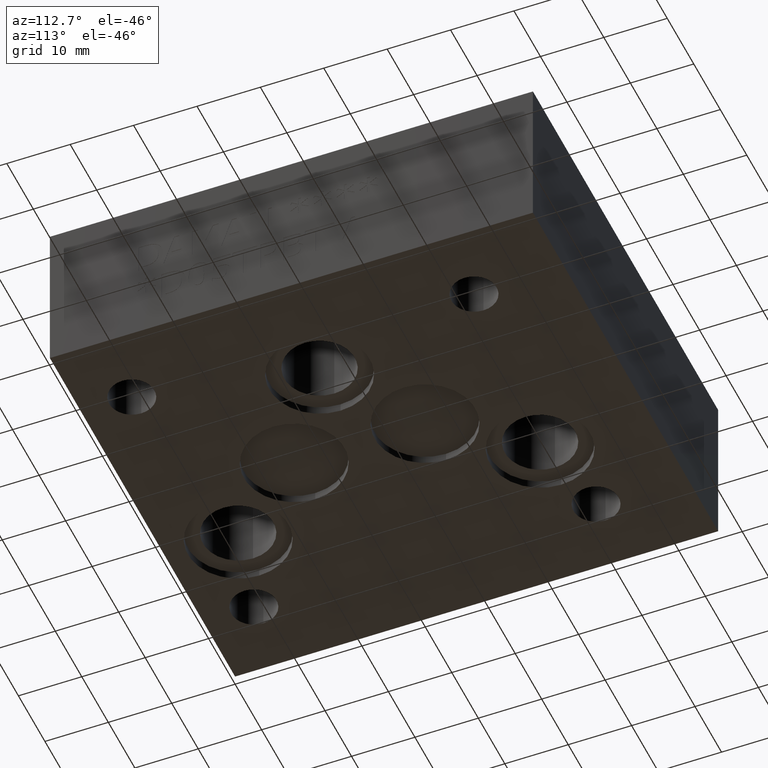
[diagram: clean part render]
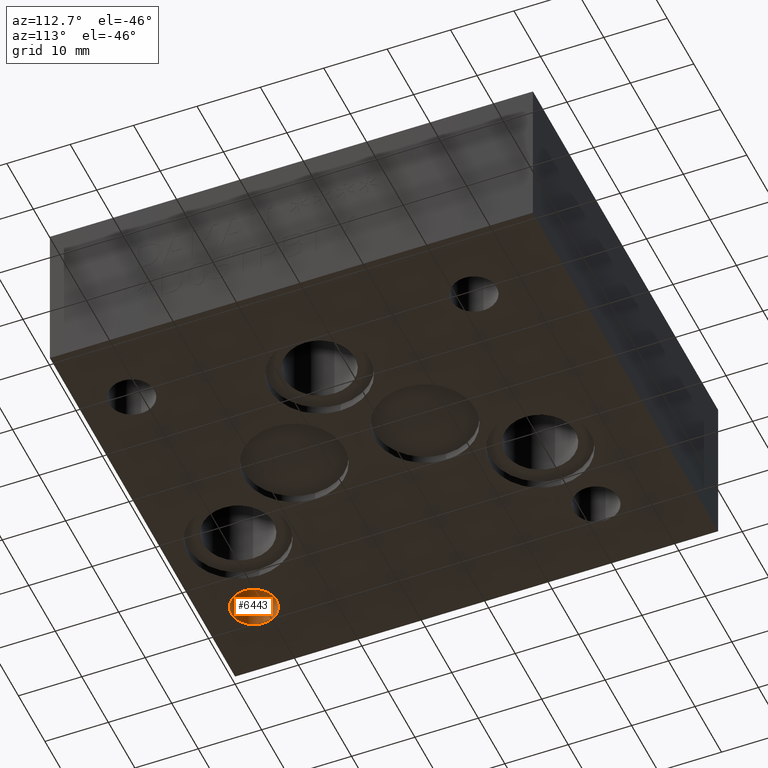
[diagram: same view with one face highlighted and labeled with its STEP entity id]
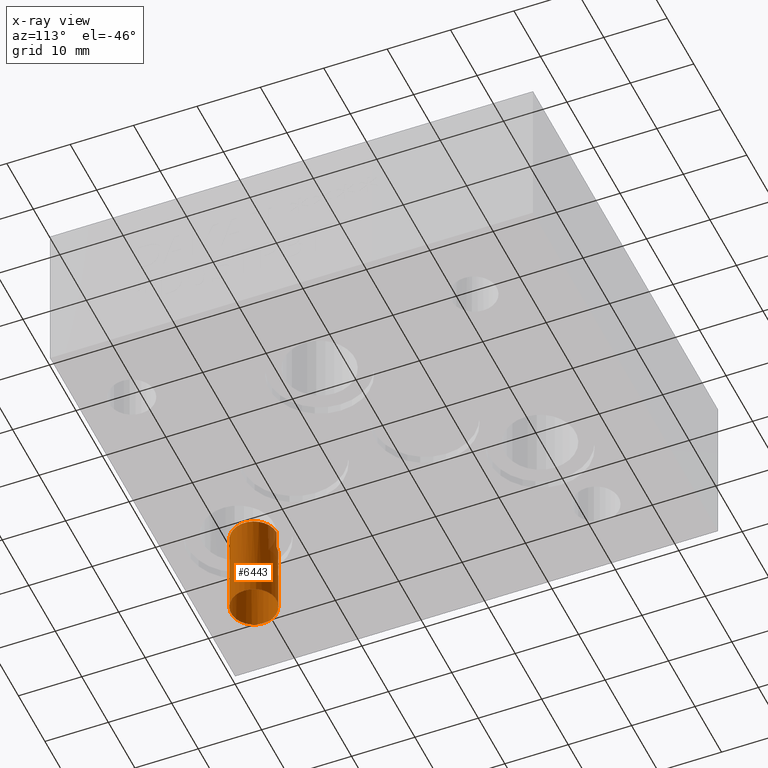
[diagram: x-ray of the same camera — body ghosted, the highlighted face saturated]
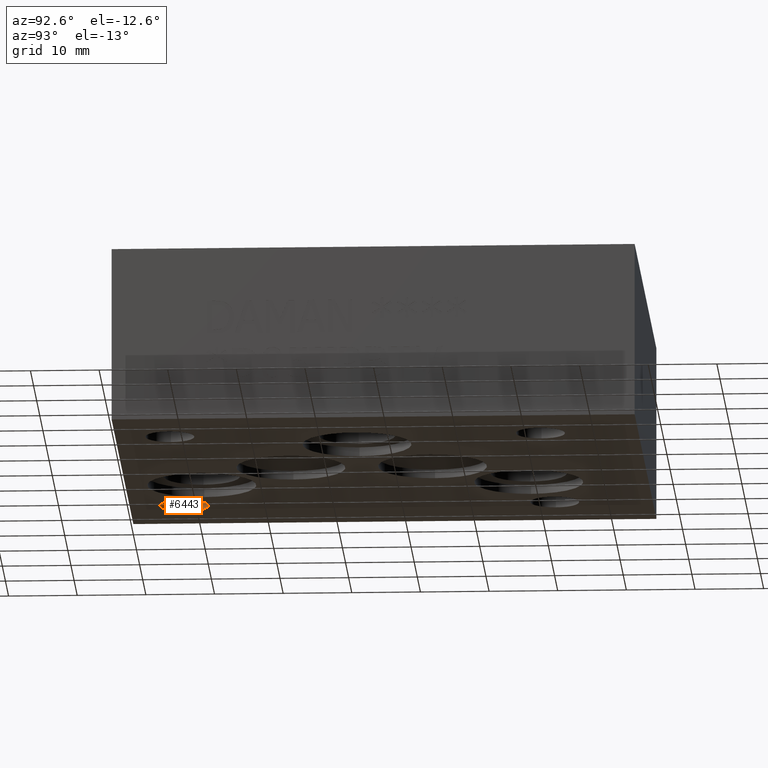
[diagram: same view with one face highlighted and labeled with its STEP entity id]
A machine part, auxiliary view. The second image highlights one B-rep face of the part: STEP entity #6443.
The next image is the same camera in x-ray: the body ghosted, the highlighted face saturated — about 6% of this face is hidden behind the body in this view.
A second angle (auxiliary view) of the same face is appended — the face is thin or edge-on in the first view.
In plain terms, the highlighted cylindrical surface (bore or boss wall) has radius 3.5687 mm, axis along (0, 0, -1).
Its self-contained STEP definition (entity closure, byte-faithful):
#59=CIRCLE('',#6749,3.5687);
#60=CIRCLE('',#6751,3.5687);
#61=CIRCLE('',#6752,3.5687);
#95=CYLINDRICAL_SURFACE('',#6750,3.5687);
#282=B_SPLINE_CURVE_WITH_KNOTS('',3,(#10788,#10789,#10790,#10791,#10792,
#10793,#10794,#10795,#10796,#10797),.UNSPECIFIED.,.F.,.F.,(4,2,2,2,4),(0.538348094949626,
0.672141773922201,0.806570255078943,0.940998422028697,1.07542658897845),
 .UNSPECIFIED.);
#283=B_SPLINE_CURVE_WITH_KNOTS('',3,(#10801,#10802,#10803,#10804,#10805,
#10806,#10807,#10808,#10809,#10810),.UNSPECIFIED.,.F.,.F.,(4,2,2,2,4),(1.07542658897845,
1.2098547559282,1.34428292287796,1.4787114040347,1.61250508300728),
 .UNSPECIFIED.);
#647=FACE_OUTER_BOUND('',#994,.T.);
#994=EDGE_LOOP('',(#5507,#5508,#5509,#5510,#5511,#5512,#5513,#5514,#5515));
#1694=LINE('',#10786,#2377);
#1695=LINE('',#10798,#2378);
#1696=LINE('',#10800,#2379);
#2377=VECTOR('',#8015,3.5687);
#2378=VECTOR('',#8016,10.);
#2379=VECTOR('',#8017,10.);
#2959=VERTEX_POINT('',#10754);
#2960=VERTEX_POINT('',#10755);
#2961=VERTEX_POINT('',#10781);
#2962=VERTEX_POINT('',#10782);
#2963=VERTEX_POINT('',#10785);
#2964=VERTEX_POINT('',#10787);
#2965=VERTEX_POINT('',#10799);
#3826=EDGE_CURVE('',#2959,#2960,#59,.T.);
#3827=EDGE_CURVE('',#2961,#2962,#60,.T.);
#3828=EDGE_CURVE('',#2962,#2961,#61,.T.);
#3829=EDGE_CURVE('',#2962,#2963,#1694,.T.);
#3830=EDGE_CURVE('',#2964,#2963,#282,.T.);
#3831=EDGE_CURVE('',#2960,#2964,#1695,.T.);
#3832=EDGE_CURVE('',#2965,#2959,#1696,.T.);
#3833=EDGE_CURVE('',#2963,#2965,#283,.T.);
#5507=ORIENTED_EDGE('',*,*,#3827,.F.);
#5508=ORIENTED_EDGE('',*,*,#3828,.F.);
#5509=ORIENTED_EDGE('',*,*,#3829,.T.);
#5510=ORIENTED_EDGE('',*,*,#3830,.F.);
#5511=ORIENTED_EDGE('',*,*,#3831,.F.);
#5512=ORIENTED_EDGE('',*,*,#3826,.F.);
#5513=ORIENTED_EDGE('',*,*,#3832,.F.);
#5514=ORIENTED_EDGE('',*,*,#3833,.F.);
#5515=ORIENTED_EDGE('',*,*,#3829,.F.);
#6443=ADVANCED_FACE('',(#647),#95,.F.);
#6749=AXIS2_PLACEMENT_3D('',#10779,#8007,#8008);
#6750=AXIS2_PLACEMENT_3D('',#10780,#8009,#8010);
#6751=AXIS2_PLACEMENT_3D('',#10783,#8011,#8012);
#6752=AXIS2_PLACEMENT_3D('',#10784,#8013,#8014);
#8007=DIRECTION('center_axis',(0.,0.,-1.));
#8008=DIRECTION('ref_axis',(1.,0.,0.));
#8009=DIRECTION('center_axis',(0.,0.,-1.));
#8010=DIRECTION('ref_axis',(1.,0.,0.));
#8011=DIRECTION('center_axis',(0.,0.,1.));
#8012=DIRECTION('ref_axis',(1.,0.,0.));
#8013=DIRECTION('center_axis',(0.,0.,1.));
#8014=DIRECTION('ref_axis',(1.,0.,0.));
#8015=DIRECTION('',(0.,0.,1.));
#8016=DIRECTION('',(0.,0.,-1.));
#8017=DIRECTION('',(0.,0.,1.));
#10754=CARTESIAN_POINT('',(11.91895,11.5188943505293,14.224));
#10755=CARTESIAN_POINT('',(11.91895,4.38150564947066,14.224));
#10779=CARTESIAN_POINT('Origin',(11.9253,7.9502,14.224));
#10780=CARTESIAN_POINT('Origin',(11.9253,7.9502,7.112));
#10781=CARTESIAN_POINT('',(15.494,7.9502,0.));
#10782=CARTESIAN_POINT('',(8.3566,7.9502,0.));
#10783=CARTESIAN_POINT('Origin',(11.9253,7.9502,0.));
#10784=CARTESIAN_POINT('Origin',(11.9253,7.9502,0.));
#10785=CARTESIAN_POINT('',(8.3566,7.9502,11.1686676515813));
#10786=CARTESIAN_POINT('',(8.3566,7.9502,7.112));
#10787=CARTESIAN_POINT('',(11.91895,4.38150564947066,11.176));
#10788=CARTESIAN_POINT('Ctrl Pts',(11.91895,4.38150564947066,11.176));
#10789=CARTESIAN_POINT('Ctrl Pts',(11.4726926861171,4.38229970288763,11.1750831075434));
#10790=CARTESIAN_POINT('Ctrl Pts',(10.9971683835178,4.47191160152461,11.1741054079284));
#10791=CARTESIAN_POINT('Ctrl Pts',(10.1199901390953,4.8352508402634,11.1723006855498));
#10792=CARTESIAN_POINT('Ctrl Pts',(9.71869748126578,5.10989831512595,11.1714744343778));
#10793=CARTESIAN_POINT('Ctrl Pts',(9.08499722018681,5.74359910333999,11.1701691360226));
#10794=CARTESIAN_POINT('Ctrl Pts',(8.81035026966019,6.1448912438134,11.1696030900775));
#10795=CARTESIAN_POINT('Ctrl Pts',(8.44615165675109,7.0241447460456,11.1688523299963));
#10796=CARTESIAN_POINT('Ctrl Pts',(8.3566,7.50210611016749,11.1686676515813));
#10797=CARTESIAN_POINT('Ctrl Pts',(8.3566,7.9502,11.1686676515813));
#10798=CARTESIAN_POINT('',(11.91895,4.38150564947066,7.112));
#10799=CARTESIAN_POINT('',(11.91895,11.5188943505293,11.176));
#10800=CARTESIAN_POINT('',(11.91895,11.5188943505293,7.112));
#10801=CARTESIAN_POINT('Ctrl Pts',(8.3566,7.9502,11.1686676515813));
#10802=CARTESIAN_POINT('Ctrl Pts',(8.3566,8.39829388983251,11.1686676515813));
#10803=CARTESIAN_POINT('Ctrl Pts',(8.44615165675109,8.8762552539544,11.1688523299963));
#10804=CARTESIAN_POINT('Ctrl Pts',(8.81035026966019,9.75550875618661,11.1696030900775));
#10805=CARTESIAN_POINT('Ctrl Pts',(9.08499722018681,10.15680089666,11.1701691360226));
#10806=CARTESIAN_POINT('Ctrl Pts',(9.71869748126578,10.7905016848741,11.1714744343778));
#10807=CARTESIAN_POINT('Ctrl Pts',(10.1199901390953,11.0651491597366,11.1723006855498));
#10808=CARTESIAN_POINT('Ctrl Pts',(10.9971683835178,11.4284883984754,11.1741054079284));
#10809=CARTESIAN_POINT('Ctrl Pts',(11.4726926861171,11.5181002971124,11.1750831075434));
#10810=CARTESIAN_POINT('Ctrl Pts',(11.91895,11.5188943505293,11.176));